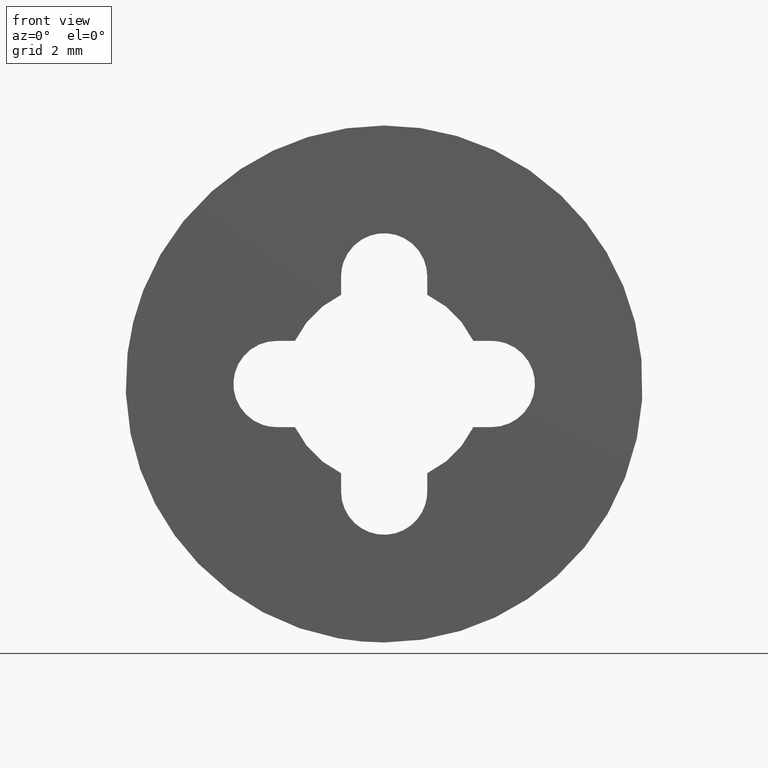
[diagram: clean part render]
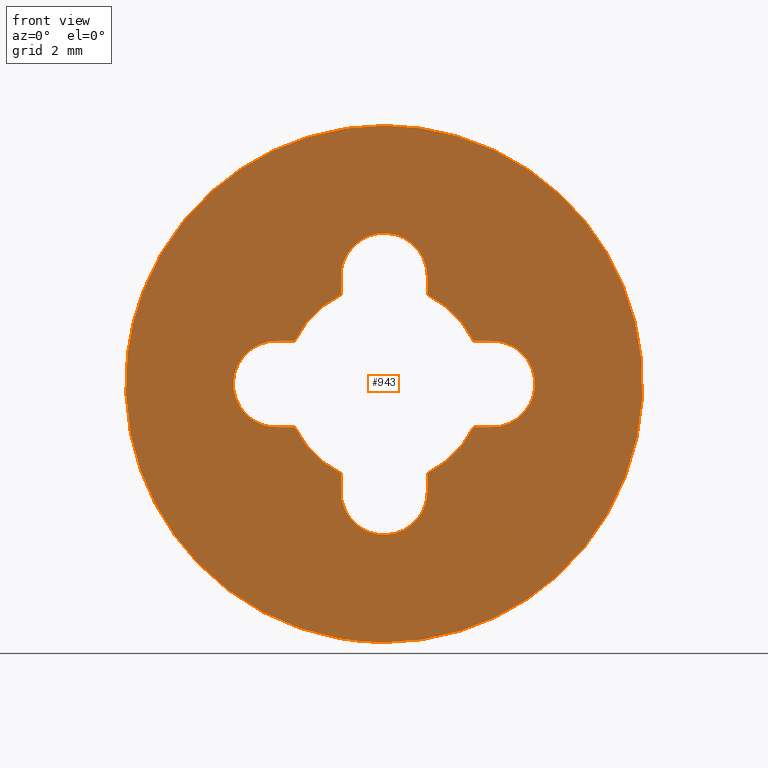
[diagram: same view with one face highlighted and labeled with its STEP entity id]
A machine part, front view. The second image highlights one B-rep face of the part: STEP entity #943.
In plain terms, the highlighted face is a freeform B-spline surface patch.
Its self-contained STEP definition (entity closure, byte-faithful):
#66=CARTESIAN_POINT('',(-5.958057609161914,4.394370E-014,0.708201613873624));
#67=VERTEX_POINT('',#66);
#68=CARTESIAN_POINT('',(0.0,0.0,-6.0));
#69=VERTEX_POINT('',#68);
#70=CARTESIAN_POINT('',(-5.958057609161915,4.394370E-014,0.708201613873624));
#71=CARTESIAN_POINT('',(-5.999999999999999,0.0,0.355342800822983));
#72=CARTESIAN_POINT('',(-6.0,0.0,0.0));
#73=CARTESIAN_POINT('',(-6.0,0.0,-6.0));
#74=CARTESIAN_POINT('',(0.0,0.0,-6.0));
#82=(BOUNDED_CURVE()B_SPLINE_CURVE(2,(#70,#71,#72,#73,#74),.UNSPECIFIED.,.F.,.U.)B_SPLINE_CURVE_WITH_KNOTS((3,2,3),(0.229562581136241,0.250000000000000,0.500000000000000),.UNSPECIFIED.)CURVE()GEOMETRIC_REPRESENTATION_ITEM()RATIONAL_B_SPLINE_CURVE((0.956026965128767,0.976056074419019,1.0,0.707106781186548,1.0))REPRESENTATION_ITEM(''));
#83=EDGE_CURVE('',#67,#69,#82,.T.);
#124=CARTESIAN_POINT('',(5.988808921607088,2.891784E-014,-0.366289094124749));
#125=VERTEX_POINT('',#124);
#131=CARTESIAN_POINT('',(0.0,0.0,-6.0));
#132=CARTESIAN_POINT('',(5.644238424988588,0.0,-6.0));
#133=CARTESIAN_POINT('',(5.988808921607088,2.891784E-014,-0.366289094124749));
#141=(BOUNDED_CURVE()B_SPLINE_CURVE(2,(#131,#132,#133),.UNSPECIFIED.,.F.,.U.)B_SPLINE_CURVE_WITH_KNOTS((3,3),(0.500000000000000,0.739333023987528),.UNSPECIFIED.)CURVE()GEOMETRIC_REPRESENTATION_ITEM()RATIONAL_B_SPLINE_CURVE((1.0,0.719603920943743,0.976072174005725))REPRESENTATION_ITEM(''));
#142=EDGE_CURVE('',#69,#125,#141,.T.);
#165=CARTESIAN_POINT('',(0.0,0.0,6.0));
#166=VERTEX_POINT('',#165);
#167=CARTESIAN_POINT('',(0.0,0.0,6.0));
#168=CARTESIAN_POINT('',(-5.329050573114072,0.0,6.0));
#169=CARTESIAN_POINT('',(-5.958057609161915,4.394370E-014,0.708201613873624));
#177=(BOUNDED_CURVE()B_SPLINE_CURVE(2,(#167,#168,#169),.UNSPECIFIED.,.F.,.U.)B_SPLINE_CURVE_WITH_KNOTS((3,3),(0.0,0.229562581136241),.UNSPECIFIED.)CURVE()GEOMETRIC_REPRESENTATION_ITEM()RATIONAL_B_SPLINE_CURVE((1.0,0.731050706767529,0.956026965128767))REPRESENTATION_ITEM(''));
#178=EDGE_CURVE('',#166,#67,#177,.T.);
#180=CARTESIAN_POINT('',(5.988808921607088,2.891784E-014,-0.366289094124749));
#181=CARTESIAN_POINT('',(6.000000000000001,0.0,-0.183315505244867));
#182=CARTESIAN_POINT('',(6.0,0.0,0.0));
#183=CARTESIAN_POINT('',(6.0,0.0,6.0));
#184=CARTESIAN_POINT('',(0.0,0.0,6.0));
#192=(BOUNDED_CURVE()B_SPLINE_CURVE(2,(#180,#181,#182,#183,#184),.UNSPECIFIED.,.F.,.U.)B_SPLINE_CURVE_WITH_KNOTS((3,2,3),(0.739333023987528,0.750000000000000,1.0),.UNSPECIFIED.)CURVE()GEOMETRIC_REPRESENTATION_ITEM()RATIONAL_B_SPLINE_CURVE((0.976072174005725,0.987502860242804,1.0,0.707106781186548,1.0))REPRESENTATION_ITEM(''));
#193=EDGE_CURVE('',#125,#166,#192,.T.);
#248=CARTESIAN_POINT('',(2.500000000000000,0.0,-1.0));
#249=VERTEX_POINT('',#248);
#250=CARTESIAN_POINT('',(2.500000000000000,0.0,1.0));
#251=VERTEX_POINT('',#250);
#252=CARTESIAN_POINT('',(2.500000000000000,0.0,-1.0));
#253=CARTESIAN_POINT('',(3.499999999999999,0.0,-1.0));
#254=CARTESIAN_POINT('',(3.500000000000000,0.0,0.0));
#255=CARTESIAN_POINT('',(3.499999999999999,0.0,1.0));
#256=CARTESIAN_POINT('',(2.500000000000000,0.0,1.0));
#264=(BOUNDED_CURVE()B_SPLINE_CURVE(2,(#252,#253,#254,#255,#256),.UNSPECIFIED.,.F.,.U.)B_SPLINE_CURVE_WITH_KNOTS((3,2,3),(0.0,0.500000000000000,1.0),.UNSPECIFIED.)CURVE()GEOMETRIC_REPRESENTATION_ITEM()RATIONAL_B_SPLINE_CURVE((1.0,0.707106781186548,1.0,0.707106781186548,1.0))REPRESENTATION_ITEM(''));
#265=EDGE_CURVE('',#249,#251,#264,.T.);
#304=CARTESIAN_POINT('',(2.071231517720795,0.0,-1.0));
#305=VERTEX_POINT('',#304);
#306=CARTESIAN_POINT('',(2.071231517720795,0.0,-1.0));
#307=CARTESIAN_POINT('',(2.500000000000000,0.0,-1.0));
#308=QUASI_UNIFORM_CURVE('',1,(#306,#307),.UNSPECIFIED.,.F.,.U.);
#309=EDGE_CURVE('',#305,#249,#308,.T.);
#341=CARTESIAN_POINT('',(0.999999999999989,0.0,-2.071231517720800));
#342=VERTEX_POINT('',#341);
#343=CARTESIAN_POINT('',(0.999999999999989,0.0,-2.071231517720803));
#344=CARTESIAN_POINT('',(1.722436087763832,0.0,-1.722436087763842));
#345=CARTESIAN_POINT('',(2.071231517720797,0.0,-1.000000000000002));
#353=(BOUNDED_CURVE()B_SPLINE_CURVE(2,(#343,#344,#345),.UNSPECIFIED.,.F.,.U.)CURVE()GEOMETRIC_REPRESENTATION_ITEM()QUASI_UNIFORM_CURVE()RATIONAL_B_SPLINE_CURVE((1.0,0.944212449032273,1.0))REPRESENTATION_ITEM(''));
#354=EDGE_CURVE('',#342,#305,#353,.T.);
#385=CARTESIAN_POINT('',(0.999999999999985,0.0,-2.499999825467075));
#386=VERTEX_POINT('',#385);
#387=CARTESIAN_POINT('',(0.999999999999985,0.0,-2.499999825467075));
#388=CARTESIAN_POINT('',(0.999999999999989,0.0,-2.071231517720800));
#389=QUASI_UNIFORM_CURVE('',1,(#387,#388),.UNSPECIFIED.,.F.,.U.);
#390=EDGE_CURVE('',#386,#342,#389,.T.);
#426=CARTESIAN_POINT('',(-1.000000000000018,0.0,-2.500000000000000));
#427=VERTEX_POINT('',#426);
#428=CARTESIAN_POINT('',(-1.000000000000018,0.0,-2.500000000000000));
#429=CARTESIAN_POINT('',(-1.0,0.0,-3.077350307974721));
#430=CARTESIAN_POINT('',(-0.499999949616683,0.0,-3.366025432873258));
#431=CARTESIAN_POINT('',(0.000000100766633,0.0,-3.654700557771795));
#432=CARTESIAN_POINT('',(0.500000100766628,0.0,-3.366025345606791));
#433=CARTESIAN_POINT('',(1.000000100766623,0.0,-3.077350133441787));
#434=CARTESIAN_POINT('',(0.999999999999985,0.0,-2.499999825467075));
#442=(BOUNDED_CURVE()B_SPLINE_CURVE(2,(#428,#429,#430,#431,#432,#433,#434),.UNSPECIFIED.,.F.,.U.)B_SPLINE_CURVE_WITH_KNOTS((3,2,2,3),(0.0,0.333333333333333,0.666666666666667,1.0),.UNSPECIFIED.)CURVE()GEOMETRIC_REPRESENTATION_ITEM()RATIONAL_B_SPLINE_CURVE((1.0,0.866025389240028,1.0,0.866025389240028,1.0,0.866025389240028,1.0))REPRESENTATION_ITEM(''));
#443=EDGE_CURVE('',#427,#386,#442,.T.);
#478=CARTESIAN_POINT('',(-1.000000000000020,0.0,-2.071231517720785));
#479=VERTEX_POINT('',#478);
#480=CARTESIAN_POINT('',(-1.000000000000020,0.0,-2.071231517720785));
#481=CARTESIAN_POINT('',(-1.000000000000018,0.0,-2.500000000000000));
#482=QUASI_UNIFORM_CURVE('',1,(#480,#481),.UNSPECIFIED.,.F.,.U.);
#483=EDGE_CURVE('',#479,#427,#482,.T.);
#515=CARTESIAN_POINT('',(-2.071231517720795,0.0,-1.0));
#516=VERTEX_POINT('',#515);
#517=CARTESIAN_POINT('',(-2.071231517720797,0.0,-1.000000000000002));
#518=CARTESIAN_POINT('',(-1.722436087763841,0.0,-1.722436087763824));
#519=CARTESIAN_POINT('',(-1.000000000000021,0.0,-2.071231517720788));
#527=(BOUNDED_CURVE()B_SPLINE_CURVE(2,(#517,#518,#519),.UNSPECIFIED.,.F.,.U.)CURVE()GEOMETRIC_REPRESENTATION_ITEM()QUASI_UNIFORM_CURVE()RATIONAL_B_SPLINE_CURVE((1.0,0.944212449032275,1.0))REPRESENTATION_ITEM(''));
#528=EDGE_CURVE('',#516,#479,#527,.T.);
#559=CARTESIAN_POINT('',(-2.500000000000000,0.0,-1.0));
#560=VERTEX_POINT('',#559);
#561=CARTESIAN_POINT('',(-2.500000000000000,0.0,-1.0));
#562=CARTESIAN_POINT('',(-2.071231517720795,0.0,-1.0));
#563=QUASI_UNIFORM_CURVE('',1,(#561,#562),.UNSPECIFIED.,.F.,.U.);
#564=EDGE_CURVE('',#560,#516,#563,.T.);
#600=CARTESIAN_POINT('',(-2.500000000000000,0.0,1.0));
#601=VERTEX_POINT('',#600);
#602=CARTESIAN_POINT('',(-2.500000000000000,0.0,1.0));
#603=CARTESIAN_POINT('',(-3.499999999999999,0.0,1.0));
#604=CARTESIAN_POINT('',(-3.500000000000000,0.0,0.0));
#605=CARTESIAN_POINT('',(-3.499999999999999,0.0,-1.0));
#606=CARTESIAN_POINT('',(-2.500000000000000,0.0,-1.0));
#614=(BOUNDED_CURVE()B_SPLINE_CURVE(2,(#602,#603,#604,#605,#606),.UNSPECIFIED.,.F.,.U.)B_SPLINE_CURVE_WITH_KNOTS((3,2,3),(0.0,0.500000000000000,1.0),.UNSPECIFIED.)CURVE()GEOMETRIC_REPRESENTATION_ITEM()RATIONAL_B_SPLINE_CURVE((1.0,0.707106781186548,1.0,0.707106781186548,1.0))REPRESENTATION_ITEM(''));
#615=EDGE_CURVE('',#601,#560,#614,.T.);
#648=CARTESIAN_POINT('',(-2.071231517720795,0.0,1.0));
#649=VERTEX_POINT('',#648);
#650=CARTESIAN_POINT('',(-2.071231517720795,0.0,1.0));
#651=CARTESIAN_POINT('',(-2.500000000000000,0.0,1.0));
#652=QUASI_UNIFORM_CURVE('',1,(#650,#651),.UNSPECIFIED.,.F.,.U.);
#653=EDGE_CURVE('',#649,#601,#652,.T.);
#685=CARTESIAN_POINT('',(-1.000000000000018,0.0,2.071231517720785));
#686=VERTEX_POINT('',#685);
#687=CARTESIAN_POINT('',(-1.000000000000020,0.0,2.071231517720789));
#688=CARTESIAN_POINT('',(-1.722436087763841,0.0,1.722436087763826));
#689=CARTESIAN_POINT('',(-2.071231517720797,0.0,1.000000000000002));
#697=(BOUNDED_CURVE()B_SPLINE_CURVE(2,(#687,#688,#689),.UNSPECIFIED.,.F.,.U.)CURVE()GEOMETRIC_REPRESENTATION_ITEM()QUASI_UNIFORM_CURVE()RATIONAL_B_SPLINE_CURVE((1.0,0.944212449032275,1.0))REPRESENTATION_ITEM(''));
#698=EDGE_CURVE('',#686,#649,#697,.T.);
#729=CARTESIAN_POINT('',(-1.0,0.0,2.500000000000000));
#730=VERTEX_POINT('',#729);
#731=CARTESIAN_POINT('',(-1.0,0.0,2.500000000000000));
#732=CARTESIAN_POINT('',(-1.000000000000018,0.0,2.071231517720785));
#733=QUASI_UNIFORM_CURVE('',1,(#731,#732),.UNSPECIFIED.,.F.,.U.);
#734=EDGE_CURVE('',#730,#686,#733,.T.);
#770=CARTESIAN_POINT('',(0.999999999999989,0.0,2.500000000000000));
#771=VERTEX_POINT('',#770);
#772=CARTESIAN_POINT('',(0.999999999999989,0.0,2.500000000000000));
#773=CARTESIAN_POINT('',(1.0,0.0,3.499999999999999));
#774=CARTESIAN_POINT('',(0.0,0.0,3.500000000000000));
#775=CARTESIAN_POINT('',(-1.0,0.0,3.499999999999999));
#776=CARTESIAN_POINT('',(-1.0,0.0,2.500000000000000));
#784=(BOUNDED_CURVE()B_SPLINE_CURVE(2,(#772,#773,#774,#775,#776),.UNSPECIFIED.,.F.,.U.)B_SPLINE_CURVE_WITH_KNOTS((3,2,3),(0.0,0.500000000000000,1.0),.UNSPECIFIED.)CURVE()GEOMETRIC_REPRESENTATION_ITEM()RATIONAL_B_SPLINE_CURVE((1.0,0.707106781186548,1.0,0.707106781186548,1.0))REPRESENTATION_ITEM(''));
#785=EDGE_CURVE('',#771,#730,#784,.T.);
#818=CARTESIAN_POINT('',(0.999999999999989,0.0,2.071231517720800));
#819=VERTEX_POINT('',#818);
#820=CARTESIAN_POINT('',(0.999999999999989,0.0,2.071231517720800));
#821=CARTESIAN_POINT('',(0.999999999999989,0.0,2.500000000000000));
#822=QUASI_UNIFORM_CURVE('',1,(#820,#821),.UNSPECIFIED.,.F.,.U.);
#823=EDGE_CURVE('',#819,#771,#822,.T.);
#855=CARTESIAN_POINT('',(2.071231517720795,0.0,1.0));
#856=VERTEX_POINT('',#855);
#857=CARTESIAN_POINT('',(2.071231517720797,0.0,1.000000000000001));
#858=CARTESIAN_POINT('',(1.722436087763833,0.0,1.722436087763841));
#859=CARTESIAN_POINT('',(0.999999999999991,0.0,2.071231517720802));
#867=(BOUNDED_CURVE()B_SPLINE_CURVE(2,(#857,#858,#859),.UNSPECIFIED.,.F.,.U.)CURVE()GEOMETRIC_REPRESENTATION_ITEM()QUASI_UNIFORM_CURVE()RATIONAL_B_SPLINE_CURVE((1.0,0.944212449032273,1.0))REPRESENTATION_ITEM(''));
#868=EDGE_CURVE('',#856,#819,#867,.T.);
#899=CARTESIAN_POINT('',(2.500000000000000,0.0,1.0));
#900=CARTESIAN_POINT('',(2.071231517720795,0.0,1.0));
#901=QUASI_UNIFORM_CURVE('',1,(#899,#900),.UNSPECIFIED.,.F.,.U.);
#902=EDGE_CURVE('',#251,#856,#901,.T.);
#914=CARTESIAN_POINT('',(-6.599290666848420,0.0,6.599399976741672));
#915=CARTESIAN_POINT('',(6.599254832535982,0.0,6.599399976741672));
#916=CARTESIAN_POINT('',(-6.599290666848420,0.0,-6.599400298606753));
#917=CARTESIAN_POINT('',(6.599254832535982,0.0,-6.599400298606753));
#918=B_SPLINE_SURFACE_WITH_KNOTS('',1,1,((#914,#916),(#915,#917)),.UNSPECIFIED.,.F.,.F.,.U.,(2,2),(2,2),(0.0,13.198545499384400),(0.0,13.198800275348431),.UNSPECIFIED.);
#919=ORIENTED_EDGE('',*,*,#178,.T.);
#920=ORIENTED_EDGE('',*,*,#83,.T.);
#921=ORIENTED_EDGE('',*,*,#142,.T.);
#922=ORIENTED_EDGE('',*,*,#193,.T.);
#923=EDGE_LOOP('',(#919,#920,#921,#922));
#924=FACE_OUTER_BOUND('',#923,.T.);
#925=ORIENTED_EDGE('',*,*,#902,.F.);
#926=ORIENTED_EDGE('',*,*,#265,.F.);
#927=ORIENTED_EDGE('',*,*,#309,.F.);
#928=ORIENTED_EDGE('',*,*,#354,.F.);
#929=ORIENTED_EDGE('',*,*,#390,.F.);
#930=ORIENTED_EDGE('',*,*,#443,.F.);
#931=ORIENTED_EDGE('',*,*,#483,.F.);
#932=ORIENTED_EDGE('',*,*,#528,.F.);
#933=ORIENTED_EDGE('',*,*,#564,.F.);
#934=ORIENTED_EDGE('',*,*,#615,.F.);
#935=ORIENTED_EDGE('',*,*,#653,.F.);
#936=ORIENTED_EDGE('',*,*,#698,.F.);
#937=ORIENTED_EDGE('',*,*,#734,.F.);
#938=ORIENTED_EDGE('',*,*,#785,.F.);
#939=ORIENTED_EDGE('',*,*,#823,.F.);
#940=ORIENTED_EDGE('',*,*,#868,.F.);
#941=EDGE_LOOP('',(#925,#926,#927,#928,#929,#930,#931,#932,#933,#934,#935,#936,#937,#938,#939,#940));
#942=FACE_BOUND('',#941,.T.);
#943=ADVANCED_FACE('',(#924,#942),#918,.F.);